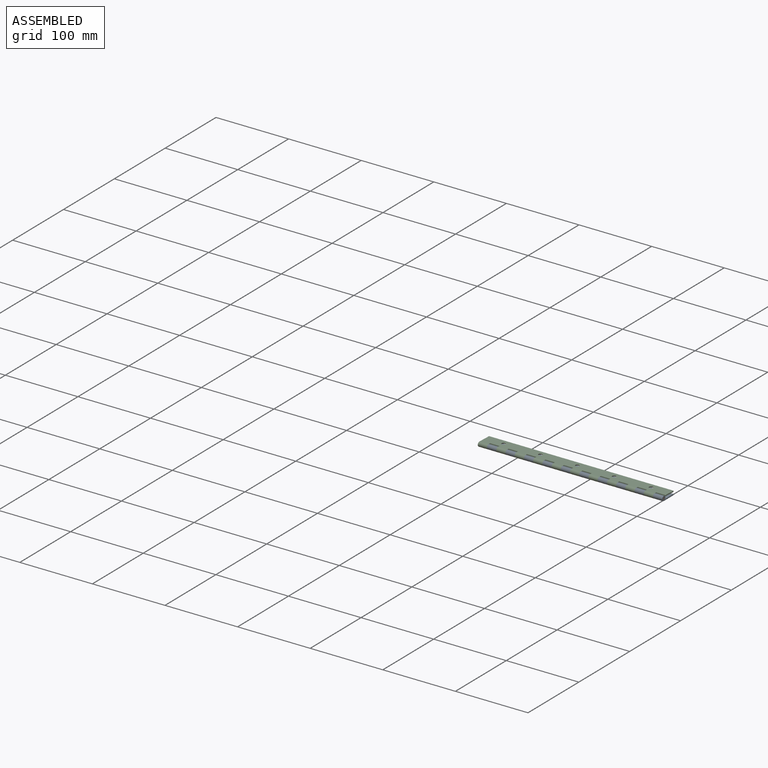
[diagram: assembled view]
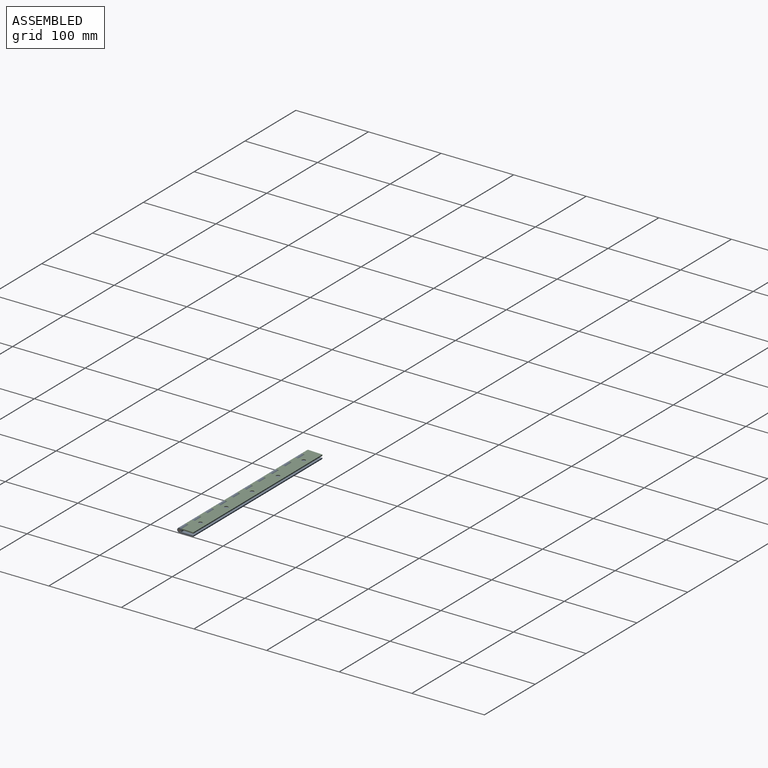
[diagram: assembled view, second angle]
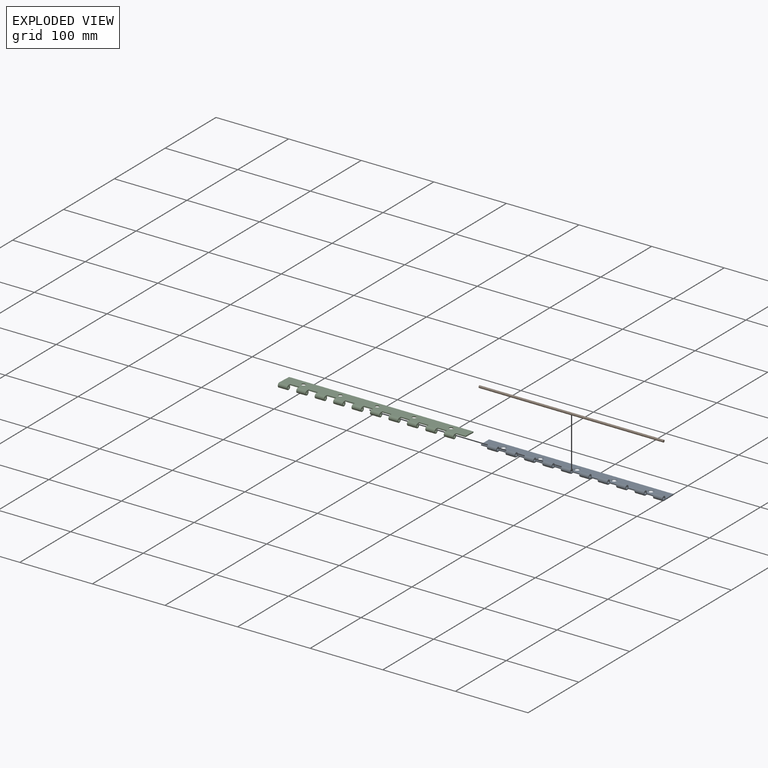
[diagram: exploded view]
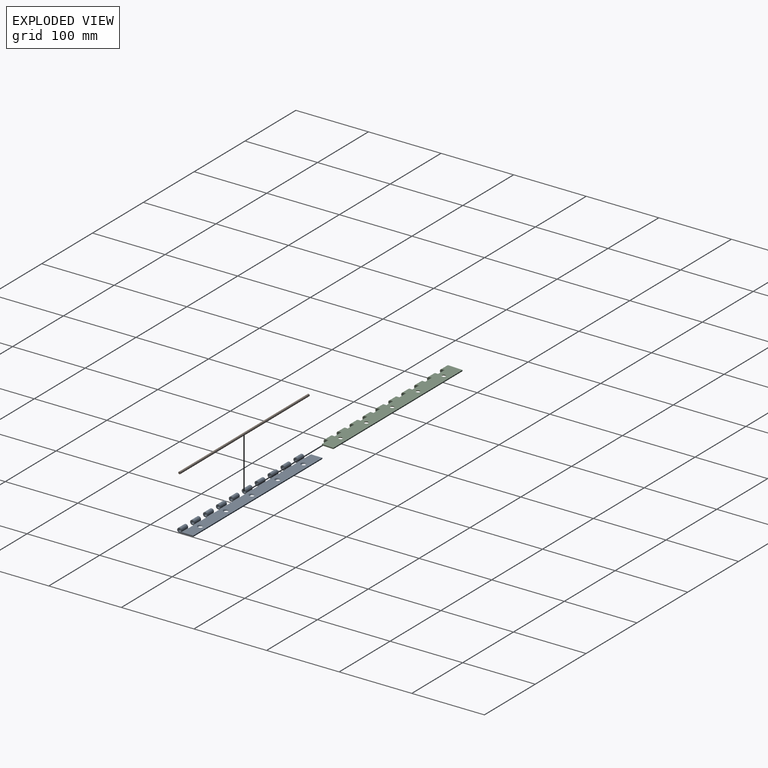
[diagram: exploded view, second angle]
ASSEMBLY  parts=3 mates=2
PART A: 69 faces, bbox 254x22.2x6.2 mm
  f0: cylinder r=1.59mm len=12.7mm, axis (-1,0,0), area 105.5mm2, adj f18,f29,f59,f63
  f1: cylinder r=1.59mm len=12.7mm, axis (-1,0,0), area 105.5mm2, adj f19,f29,f56,f60
  f2: cylinder r=1.59mm len=12.7mm, axis (-1,0,0), area 105.5mm2, adj f20,f29,f53,f57
  f3: cylinder r=1.59mm len=12.7mm, axis (-1,0,0), area 105.5mm2, adj f21,f29,f50,f54
  f4: cylinder r=1.59mm len=12.7mm, axis (-1,0,0), area 105.5mm2, adj f22,f29,f47,f51
  f5: cylinder r=1.59mm len=12.7mm, axis (-1,0,0), area 105.5mm2, adj f23,f29,f44,f48
  f6: cylinder r=1.59mm len=12.7mm, axis (-1,0,0), area 105.5mm2, adj f24,f29,f41,f45
  f7: cylinder r=1.59mm len=12.7mm, axis (-1,0,0), area 105.5mm2, adj f25,f29,f38,f42
  f8: cylinder r=1.59mm len=12.7mm, axis (-1,0,0), area 105.5mm2, adj f26,f29,f35,f39
  f9: cylinder r=3.11mm len=12.7mm, axis (-1,0,0), area 206.7mm2, adj f18,f31,f59,f63
  f10: cylinder r=3.11mm len=12.7mm, axis (-1,0,0), area 206.7mm2, adj f19,f31,f56,f60
  f11: cylinder r=3.11mm len=12.7mm, axis (-1,0,0), area 206.7mm2, adj f20,f31,f53,f57
  f12: cylinder r=3.11mm len=12.7mm, axis (-1,0,0), area 206.7mm2, adj f21,f31,f50,f54
  f13: cylinder r=3.11mm len=12.7mm, axis (-1,0,0), area 206.7mm2, adj f22,f31,f47,f51
  f14: cylinder r=3.11mm len=12.7mm, axis (-1,0,0), area 206.7mm2, adj f23,f31,f44,f48
  f15: cylinder r=3.11mm len=12.7mm, axis (-1,0,0), area 206.7mm2, adj f24,f31,f41,f45
  f16: cylinder r=3.11mm len=12.7mm, axis (-1,0,0), area 206.7mm2, adj f25,f31,f38,f42
  f17: cylinder r=3.11mm len=12.7mm, axis (-1,0,0), area 206.7mm2, adj f26,f31,f35,f39
  f18: plane 12.7x1.32mm, normal (0,0.5,-0.87), area 19.4mm2, adj f0,f9,f59,f63
  f19: plane 12.7x1.32mm, normal (0,0.5,-0.87), area 19.4mm2, adj f1,f10,f56,f60
  f20: plane 12.7x1.32mm, normal (0,0.5,-0.87), area 19.4mm2, adj f2,f11,f53,f57
  f21: plane 12.7x1.32mm, normal (0,0.5,-0.87), area 19.4mm2, adj f3,f12,f50,f54
  f22: plane 12.7x1.32mm, normal (0,0.5,-0.87), area 19.4mm2, adj f4,f13,f47,f51
  f23: plane 12.7x1.32mm, normal (0,0.5,-0.87), area 19.4mm2, adj f5,f14,f44,f48
  f24: plane 12.7x1.32mm, normal (0,0.5,-0.87), area 19.4mm2, adj f6,f15,f41,f45
  f25: plane 12.7x1.32mm, normal (0,0.5,-0.87), area 19.4mm2, adj f7,f16,f38,f42
  f26: plane 12.7x1.32mm, normal (0,0.5,-0.87), area 19.4mm2, adj f8,f17,f35,f39
  f27: plane 15.81x1.52mm, normal (1,0,0), area 24.1mm2, adj f29,f30,f31,f36
  f28: cylinder r=1.59mm len=12.7mm, axis (-1,0,0), area 105.5mm2, adj f29,f33,f34,f62
  f29: plane 254x19.05mm, normal (0,0,1), area 4188.6mm2, adj f0,f1,f2,f3,f4,f5,f6,f7
  f30: plane 254x1.52mm, normal (0,-1,0), area 387.1mm2, adj f27,f29,f31,f34
  f31: plane 254x19.05mm, normal (0,0,-1), area 4323.3mm2, adj f9,f10,f11,f12,f13,f14,f15,f16
  f32: cylinder r=3.11mm len=12.7mm, axis (-1,0,0), area 206.7mm2, adj f31,f33,f34,f62
  f33: plane 12.7x1.32mm, normal (0,0.5,-0.87), area 19.4mm2, adj f28,f32,f34,f62
  f34: plane 22.16x6.22mm, normal (-1,0,0), area 47.8mm2, adj f28,f29,f30,f31,f32,f33
  f35: plane 6.35x6.22mm, normal (1,0,0), area 23.7mm2, adj f8,f17,f26,f29,f31,f36
  f36: plane 12.7x1.52mm, normal (0,1,0), area 19.4mm2, adj f27,f29,f31,f35
  f37: plane 12.7x1.52mm, normal (0,1,0), area 19.4mm2, adj f29,f31,f38,f39
  f38: plane 6.35x6.22mm, normal (1,0,0), area 23.7mm2, adj f7,f16,f25,f29,f31,f37
  f39: plane 6.35x6.22mm, normal (-1,0,0), area 23.7mm2, adj f8,f17,f26,f29,f31,f37
  f40: plane 12.7x1.52mm, normal (0,1,0), area 19.4mm2, adj f29,f31,f41,f42
  f41: plane 6.35x6.22mm, normal (1,0,0), area 23.7mm2, adj f6,f15,f24,f29,f31,f40
  f42: plane 6.35x6.22mm, normal (-1,0,0), area 23.7mm2, adj f7,f16,f25,f29,f31,f40
  f43: plane 12.7x1.52mm, normal (0,1,0), area 19.4mm2, adj f29,f31,f44,f45
  f44: plane 6.35x6.22mm, normal (1,0,0), area 23.7mm2, adj f5,f14,f23,f29,f31,f43
  f45: plane 6.35x6.22mm, normal (-1,0,0), area 23.7mm2, adj f6,f15,f24,f29,f31,f43
  f46: plane 12.7x1.52mm, normal (0,1,0), area 19.4mm2, adj f29,f31,f47,f48
  f47: plane 6.35x6.22mm, normal (1,0,0), area 23.7mm2, adj f4,f13,f22,f29,f31,f46
  f48: plane 6.35x6.22mm, normal (-1,0,0), area 23.7mm2, adj f5,f14,f23,f29,f31,f46
  f49: plane 12.7x1.52mm, normal (0,1,0), area 19.4mm2, adj f29,f31,f50,f51
  f50: plane 6.35x6.22mm, normal (1,0,0), area 23.7mm2, adj f3,f12,f21,f29,f31,f49
  f51: plane 6.35x6.22mm, normal (-1,0,0), area 23.7mm2, adj f4,f13,f22,f29,f31,f49
  f52: plane 12.7x1.52mm, normal (0,1,0), area 19.4mm2, adj f29,f31,f53,f54
  f53: plane 6.35x6.22mm, normal (1,0,0), area 23.7mm2, adj f2,f11,f20,f29,f31,f52
  f54: plane 6.35x6.22mm, normal (-1,0,0), area 23.7mm2, adj f3,f12,f21,f29,f31,f52
  f55: plane 12.7x1.52mm, normal (0,1,0), area 19.4mm2, adj f29,f31,f56,f57
  f56: plane 6.35x6.22mm, normal (1,0,0), area 23.7mm2, adj f1,f10,f19,f29,f31,f55
  f57: plane 6.35x6.22mm, normal (-1,0,0), area 23.7mm2, adj f2,f11,f20,f29,f31,f55
  f58: plane 12.7x1.52mm, normal (0,1,0), area 19.4mm2, adj f29,f31,f59,f60
  f59: plane 6.35x6.22mm, normal (1,0,0), area 23.7mm2, adj f0,f9,f18,f29,f31,f58
  f60: plane 6.35x6.22mm, normal (-1,0,0), area 23.7mm2, adj f1,f10,f19,f29,f31,f58
  f61: plane 12.7x1.52mm, normal (0,1,0), area 19.4mm2, adj f29,f31,f62,f63
  f62: plane 6.35x6.22mm, normal (1,0,0), area 23.7mm2, adj f28,f29,f31,f32,f33,f61
  f63: plane 6.35x6.22mm, normal (-1,0,0), area 23.7mm2, adj f0,f9,f18,f29,f31,f61
  f64: cone r=1.83mm half-angle=41deg, axis (0,0,1), area 41.1mm2, adj f29,f31
  f65: cone r=1.83mm half-angle=41deg, axis (0,0,1), area 41.1mm2, adj f29,f31
  f66: cone r=1.83mm half-angle=41deg, axis (0,0,1), area 41.1mm2, adj f29,f31
  f67: cone r=1.83mm half-angle=41deg, axis (0,0,1), area 41.1mm2, adj f29,f31
  f68: cone r=1.83mm half-angle=41deg, axis (0,0,1), area 41.1mm2, adj f29,f31
PART B: 3 faces, bbox 254x3.2x3.2 mm
  f0: plane 3.18x3.18mm, normal (1,0,0), area 7.9mm2, adj f1
  f1: cylinder r=1.59mm len=254mm, axis (-1,0,0), area 2533.5mm2, adj f0,f2
  f2: plane 3.18x3.18mm, normal (-1,0,0), area 7.9mm2, adj f1
PART C: same geometry as A
PLACE A rot(axis=(0,0,-1),180deg) t=(6.02,-55.84,41.21)mm fixed
PLACE B rot(axis=(0,0,1),0deg) t=(-247.98,-55.84,41.21)mm
PLACE C rot(axis=(1,0,0),178deg) t=(-247.98,-55.84,41.21)mm
MATE fastened B.f1 <-> A.f0  axis (1,0,0) through (6.02,-55.84,41.21)mm
MATE revolute C.f0 <-> A.f9  axis (-1,0,0) through (-146.38,-55.84,41.21)mm
